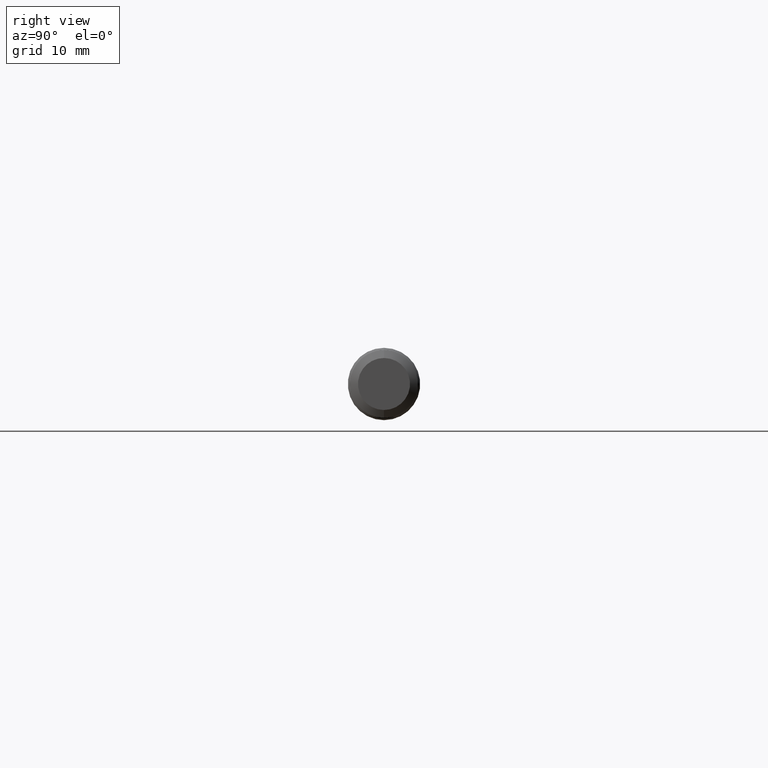
[diagram: clean part render]
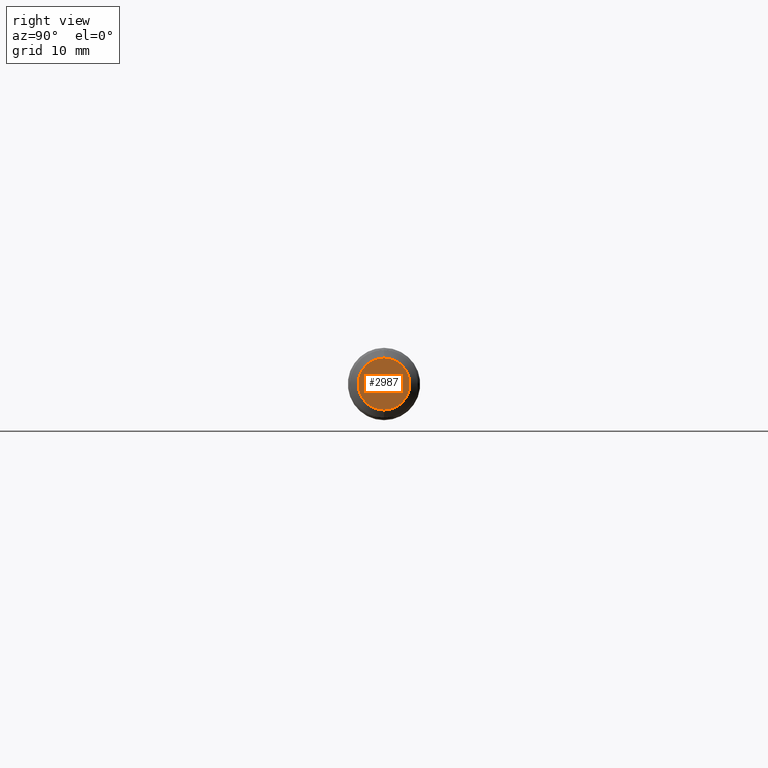
[diagram: same view with one face highlighted and labeled with its STEP entity id]
A machine part, right view. The second image highlights one B-rep face of the part: STEP entity #2987.
In plain terms, the highlighted planar face has unit normal (1, 0, -0).
Its self-contained STEP definition (entity closure, byte-faithful):
#124 = FACE_OUTER_BOUND ( 'NONE', #1631, .T. ) ;
#149 = ORIENTED_EDGE ( 'NONE', *, *, #2801, .T. ) ;
#286 = CIRCLE ( 'NONE', #2078, 0.08979638741947258695 ) ;
#288 = AXIS2_PLACEMENT_3D ( 'NONE', #1447, #2513, #3100 ) ;
#457 = CIRCLE ( 'NONE', #288, 0.08979638741947258695 ) ;
#531 = CARTESIAN_POINT ( 'NONE',  ( 2.500000000000000000, 0.000000000000000000, 0.000000000000000000 ) ) ;
#557 = AXIS2_PLACEMENT_3D ( 'NONE', #1771, #3029, #2878 ) ;
#943 = ORIENTED_EDGE ( 'NONE', *, *, #2091, .T. ) ;
#1072 = CARTESIAN_POINT ( 'NONE',  ( 2.500000000000000000, 1.099688584282527585E-17, -0.08979638741947258695 ) ) ;
#1447 = CARTESIAN_POINT ( 'NONE',  ( 2.500000000000000000, 0.000000000000000000, 0.000000000000000000 ) ) ;
#1591 = VERTEX_POINT ( 'NONE', #1072 ) ;
#1631 = EDGE_LOOP ( 'NONE', ( #149, #943 ) ) ;
#1711 = PLANE ( 'NONE',  #557 ) ;
#1771 = CARTESIAN_POINT ( 'NONE',  ( 2.500000000000000000, 0.1170000000000000068, 0.000000000000000000 ) ) ;
#1865 = CARTESIAN_POINT ( 'NONE',  ( 2.500000000000000000, 0.000000000000000000, 0.08979638741947258695 ) ) ;
#2078 = AXIS2_PLACEMENT_3D ( 'NONE', #531, #2635, #2369 ) ;
#2091 = EDGE_CURVE ( 'NONE', #1591, #2485, #457, .T. ) ;
#2369 = DIRECTION ( 'NONE',  ( 0.000000000000000000, 0.000000000000000000, -1.000000000000000000 ) ) ;
#2485 = VERTEX_POINT ( 'NONE', #1865 ) ;
#2513 = DIRECTION ( 'NONE',  ( 1.000000000000000000, -0.000000000000000000, -0.000000000000000000 ) ) ;
#2635 = DIRECTION ( 'NONE',  ( 1.000000000000000000, -0.000000000000000000, -0.000000000000000000 ) ) ;
#2801 = EDGE_CURVE ( 'NONE', #2485, #1591, #286, .T. ) ;
#2878 = DIRECTION ( 'NONE',  ( -0.000000000000000000, 0.000000000000000000, -1.000000000000000000 ) ) ;
#2987 = ADVANCED_FACE ( 'NONE', ( #124 ), #1711, .T. ) ;
#3029 = DIRECTION ( 'NONE',  ( 1.000000000000000000, 0.000000000000000000, -0.000000000000000000 ) ) ;
#3100 = DIRECTION ( 'NONE',  ( 0.000000000000000000, 0.000000000000000000, -1.000000000000000000 ) ) ;